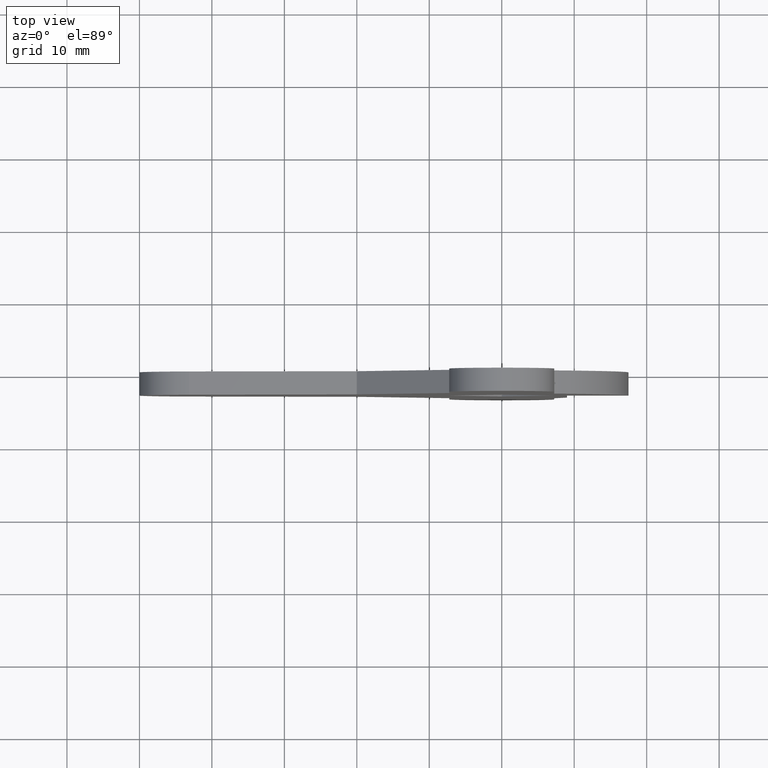
[diagram: clean part render]
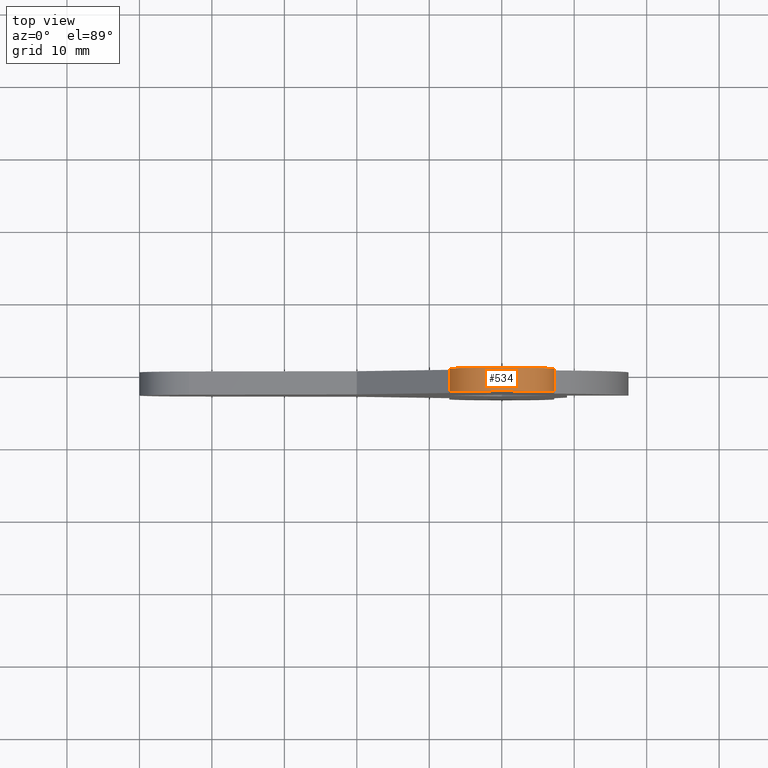
[diagram: same view with one face highlighted and labeled with its STEP entity id]
A machine part, top view. The second image highlights one B-rep face of the part: STEP entity #534.
In plain terms, the highlighted face is a freeform B-spline surface patch.
Its self-contained STEP definition (entity closure, byte-faithful):
#65=CARTESIAN_POINT('',(-7.250000000000000,0.0,30.250000000000000));
#66=VERTEX_POINT('',#65);
#72=CARTESIAN_POINT('',(7.250000000000000,0.0,30.250000000000000));
#73=VERTEX_POINT('',#72);
#74=CARTESIAN_POINT('',(7.250000000000000,0.0,30.250000000000000));
#75=CARTESIAN_POINT('',(7.250000000000000,0.0,37.499999999999993));
#76=CARTESIAN_POINT('',(0.0,0.0,37.500000000000000));
#77=CARTESIAN_POINT('',(-7.250000000000000,0.0,37.499999999999993));
#78=CARTESIAN_POINT('',(-7.250000000000000,0.0,30.250000000000000));
#86=(BOUNDED_CURVE()B_SPLINE_CURVE(2,(#74,#75,#76,#77,#78),.UNSPECIFIED.,.F.,.U.)B_SPLINE_CURVE_WITH_KNOTS((3,2,3),(0.0,0.500000000000000,1.0),.UNSPECIFIED.)CURVE()GEOMETRIC_REPRESENTATION_ITEM()RATIONAL_B_SPLINE_CURVE((1.0,0.707106781186548,1.0,0.707106781186548,1.0))REPRESENTATION_ITEM(''));
#87=EDGE_CURVE('',#73,#66,#86,.T.);
#337=CARTESIAN_POINT('',(7.250000000000000,-3.199999999999870,30.250000000000000));
#338=VERTEX_POINT('',#337);
#344=CARTESIAN_POINT('',(-7.250000000000000,-3.199999999999870,30.250000000000000));
#345=VERTEX_POINT('',#344);
#346=CARTESIAN_POINT('',(7.250000000000000,-3.199999999999870,30.250000000000000));
#347=CARTESIAN_POINT('',(7.250000000000000,-3.199999999999870,37.499999999999993));
#348=CARTESIAN_POINT('',(0.0,-3.199999999999870,37.500000000000000));
#349=CARTESIAN_POINT('',(-7.250000000000000,-3.199999999999870,37.499999999999993));
#350=CARTESIAN_POINT('',(-7.250000000000000,-3.199999999999870,30.250000000000000));
#358=(BOUNDED_CURVE()B_SPLINE_CURVE(2,(#346,#347,#348,#349,#350),.UNSPECIFIED.,.F.,.U.)B_SPLINE_CURVE_WITH_KNOTS((3,2,3),(0.0,0.500000000000000,1.0),.UNSPECIFIED.)CURVE()GEOMETRIC_REPRESENTATION_ITEM()RATIONAL_B_SPLINE_CURVE((1.0,0.707106781186548,1.0,0.707106781186548,1.0))REPRESENTATION_ITEM(''));
#359=EDGE_CURVE('',#338,#345,#358,.T.);
#498=CARTESIAN_POINT('',(-7.250000000000000,-3.199999999999870,30.250000000000000));
#499=CARTESIAN_POINT('',(-7.250000000000000,0.0,30.250000000000000));
#500=QUASI_UNIFORM_CURVE('',1,(#498,#499),.UNSPECIFIED.,.F.,.U.);
#501=EDGE_CURVE('',#345,#66,#500,.T.);
#506=CARTESIAN_POINT('',(7.247515606072788,-3.279999999999868,30.060217124767910));
#507=CARTESIAN_POINT('',(7.247515606072788,0.081999999999997,30.060217124767910));
#508=CARTESIAN_POINT('',(7.445765383914885,-3.279999999999867,37.631070696534827));
#509=CARTESIAN_POINT('',(7.445765383914885,0.081999999999997,37.631070696534827));
#510=CARTESIAN_POINT('',(-0.126529946670296,-3.279999999999868,37.498895789883832));
#511=CARTESIAN_POINT('',(-0.126529946670296,0.081999999999997,37.498895789883832));
#512=CARTESIAN_POINT('',(-7.698825277255470,-3.279999999999867,37.366720883232837));
#513=CARTESIAN_POINT('',(-7.698825277255470,0.081999999999997,37.366720883232837));
#514=CARTESIAN_POINT('',(-7.236477288558529,-3.279999999999868,29.807398088372299));
#515=CARTESIAN_POINT('',(-7.236477288558529,0.081999999999997,29.807398088372299));
#523=(BOUNDED_SURFACE()B_SPLINE_SURFACE(1,2,((#506,#508,#510,#512,#514),(#507,#509,#511,#513,#515)),.UNSPECIFIED.,.F.,.F.,.U.)B_SPLINE_SURFACE_WITH_KNOTS((2,2),(3,2,3),(0.0,3.361999999999864),(0.0,12.384506775234360,24.769013550468731),.UNSPECIFIED.)GEOMETRIC_REPRESENTATION_ITEM()RATIONAL_B_SPLINE_SURFACE(((1.0,0.691513055782269,1.0,0.691513055782269,1.0),(1.0,0.691513055782269,1.0,0.691513055782269,1.0)))REPRESENTATION_ITEM('')SURFACE());
#524=ORIENTED_EDGE('',*,*,#87,.T.);
#525=ORIENTED_EDGE('',*,*,#501,.F.);
#526=ORIENTED_EDGE('',*,*,#359,.F.);
#527=CARTESIAN_POINT('',(7.250000000000000,-3.199999999999870,30.250000000000000));
#528=CARTESIAN_POINT('',(7.250000000000000,0.0,30.250000000000000));
#529=QUASI_UNIFORM_CURVE('',1,(#527,#528),.UNSPECIFIED.,.F.,.U.);
#530=EDGE_CURVE('',#338,#73,#529,.T.);
#531=ORIENTED_EDGE('',*,*,#530,.T.);
#532=EDGE_LOOP('',(#524,#525,#526,#531));
#533=FACE_OUTER_BOUND('',#532,.T.);
#534=ADVANCED_FACE('',(#533),#523,.T.);